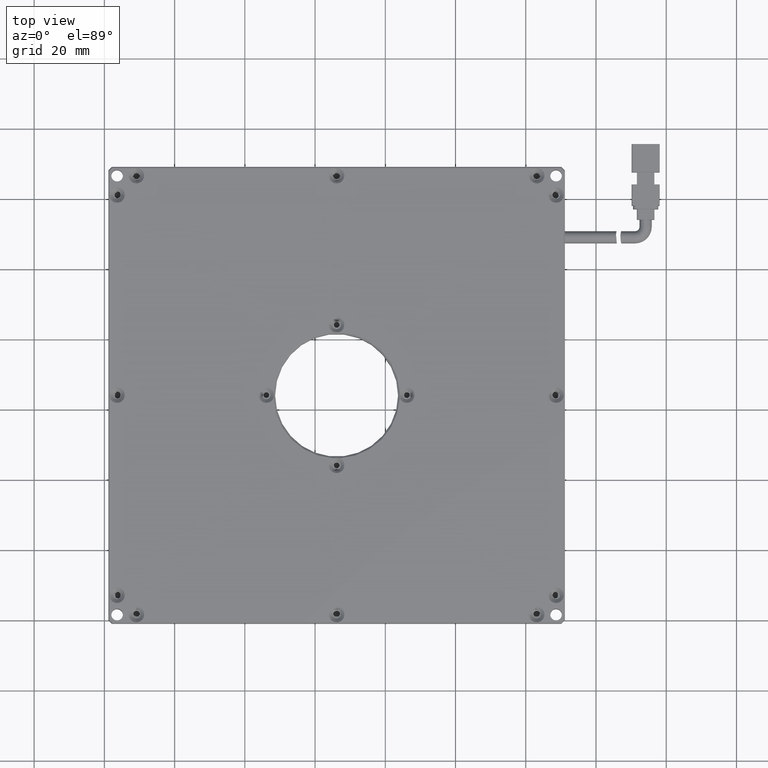
[diagram: clean part render]
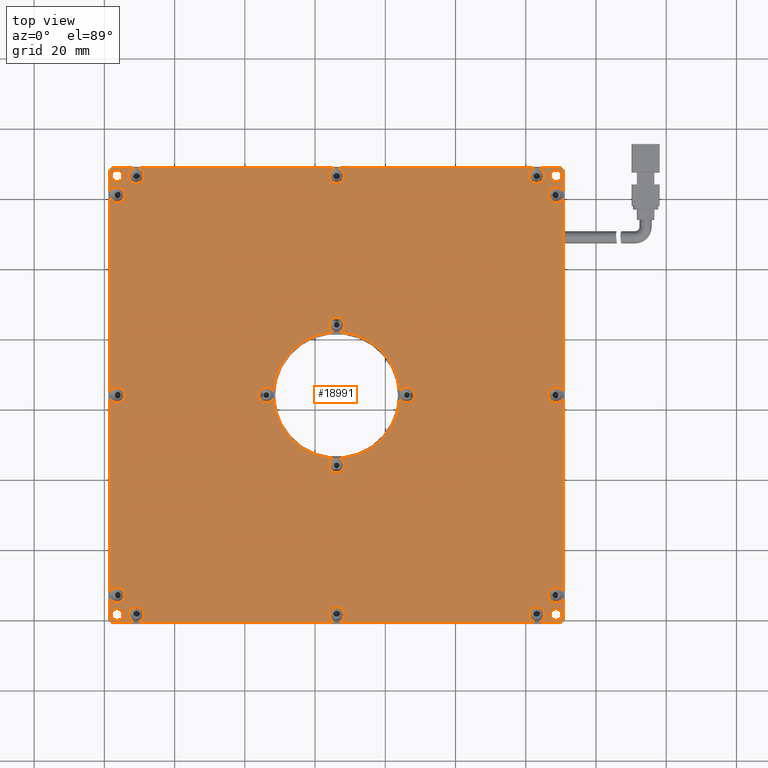
[diagram: same view with one face highlighted and labeled with its STEP entity id]
A machine part, top view. The second image highlights one B-rep face of the part: STEP entity #18991.
In plain terms, the highlighted planar face has unit normal (0, 0, -1).
Its self-contained STEP definition (entity closure, byte-faithful):
#48 = CARTESIAN_POINT ( 'NONE',  ( -30.87092592592590600, -38.44055555555553400, 6.000000000021374000 ) ) ;
#105 = EDGE_CURVE ( 'NONE', #8917, #11509, #1846, .T. ) ;
#231 = VERTEX_POINT ( 'NONE', #1223 ) ;
#282 = CARTESIAN_POINT ( 'NONE',  ( 90.00481000536216000, -40.64055555555554400, 5.999999999999999100 ) ) ;
#286 = AXIS2_PLACEMENT_3D ( 'NONE', #14845, #7040, #10150 ) ;
#291 = ORIENTED_EDGE ( 'NONE', *, *, #18094, .F. ) ;
#308 = ORIENTED_EDGE ( 'NONE', *, *, #1393, .T. ) ;
#333 = DIRECTION ( 'NONE',  ( 0.0000000000000000000, 4.928191693171372200E-017, 1.000000000000000000 ) ) ;
#376 = DIRECTION ( 'NONE',  ( 1.000000000000000000, 0.0000000000000000000, 0.0000000000000000000 ) ) ;
#443 = CARTESIAN_POINT ( 'NONE',  ( 23.92907407411705400, 44.05944444444446600, 5.999999999964530600 ) ) ;
#538 = VERTEX_POINT ( 'NONE', #8771 ) ;
#542 = DIRECTION ( 'NONE',  ( 1.000000000000000000, 0.0000000000000000000, 0.0000000000000000000 ) ) ;
#710 = ORIENTED_EDGE ( 'NONE', *, *, #3239, .T. ) ;
#753 = VERTEX_POINT ( 'NONE', #19229 ) ;
#818 = DIRECTION ( 'NONE',  ( 1.000000000000000000, 0.0000000000000000000, 0.0000000000000000000 ) ) ;
#824 = EDGE_CURVE ( 'NONE', #5753, #16916, #16545, .T. ) ;
#826 = CARTESIAN_POINT ( 'NONE',  ( -37.74666185721396500, -40.64055555555553700, 6.000000000000000000 ) ) ;
#895 = CIRCLE ( 'NONE', #18716, 18.00000000000000400 ) ;
#902 = AXIS2_PLACEMENT_3D ( 'NONE', #3874, #8657, #2284 ) ;
#931 = AXIS2_PLACEMENT_3D ( 'NONE', #18036, #10268, #818 ) ;
#943 = VERTEX_POINT ( 'NONE', #3540 ) ;
#957 = DIRECTION ( 'NONE',  ( 1.000000000000000000, 0.0000000000000000000, 0.0000000000000000000 ) ) ;
#966 = EDGE_LOOP ( 'NONE', ( #308, #20166 ) ) ;
#978 = ORIENTED_EDGE ( 'NONE', *, *, #10650, .F. ) ;
#1002 = VERTEX_POINT ( 'NONE', #15107 ) ;
#1095 = CARTESIAN_POINT ( 'NONE',  ( 88.62907407407409700, 86.55944444444446600, 6.000000000000000000 ) ) ;
#1159 = DIRECTION ( 'NONE',  ( 1.000000000000000000, 0.0000000000000000000, 0.0000000000000000000 ) ) ;
#1197 = CARTESIAN_POINT ( 'NONE',  ( 85.32907407410438300, 86.55944444444446600, 6.000000000078217400 ) ) ;
#1223 = CARTESIAN_POINT ( 'NONE',  ( 86.42907407411702500, 81.05944444444446600, 6.000000000021374000 ) ) ;
#1251 = DIRECTION ( 'NONE',  ( 0.0000000000000000000, -0.0000000000000000000, 1.000000000000000000 ) ) ;
#1284 = AXIS2_PLACEMENT_3D ( 'NONE', #18309, #8851, #19825 ) ;
#1393 = EDGE_CURVE ( 'NONE', #10666, #20130, #7433, .T. ) ;
#1401 = AXIS2_PLACEMENT_3D ( 'NONE', #16763, #5881, #1159 ) ;
#1455 = DIRECTION ( 'NONE',  ( 0.0000000000000000000, 0.0000000000000000000, -1.000000000000000000 ) ) ;
#1465 = ORIENTED_EDGE ( 'NONE', *, *, #18572, .F. ) ;
#1473 = VERTEX_POINT ( 'NONE', #10431 ) ;
#1495 = CIRCLE ( 'NONE', #20272, 2.199999999957069600 ) ;
#1563 = CARTESIAN_POINT ( 'NONE',  ( 26.99830304270746200, 6.080444444440537700, 5.999999999985513800 ) ) ;
#1577 = CIRCLE ( 'NONE', #286, 2.199999999940693800 ) ;
#1597 = DIRECTION ( 'NONE',  ( 0.0000000000000000000, -1.000000000000000000, 0.0000000000000000000 ) ) ;
#1652 = AXIS2_PLACEMENT_3D ( 'NONE', #16388, #9031, #2453 ) ;
#1659 = DIRECTION ( 'NONE',  ( 1.000000000000000000, 0.0000000000000000000, 0.0000000000000000000 ) ) ;
#1664 = DIRECTION ( 'NONE',  ( 1.000000000000000000, 0.0000000000000000000, 0.0000000000000000000 ) ) ;
#1829 = ORIENTED_EDGE ( 'NONE', *, *, #4448, .F. ) ;
#1836 = AXIS2_PLACEMENT_3D ( 'NONE', #9772, #333, #12687 ) ;
#1846 = CIRCLE ( 'NONE', #902, 2.200000000013913000 ) ;
#1923 = CIRCLE ( 'NONE', #15879, 2.199999999957069600 ) ;
#1949 = ORIENTED_EDGE ( 'NONE', *, *, #4557, .F. ) ;
#1974 = VERTEX_POINT ( 'NONE', #16333 ) ;
#2002 = LINE ( 'NONE', #4285, #9917 ) ;
#2015 = VECTOR ( 'NONE', #10840, 1000.000000000000100 ) ;
#2043 = ORIENTED_EDGE ( 'NONE', *, *, #19220, .F. ) ;
#2063 = CARTESIAN_POINT ( 'NONE',  ( 26.12907407407409700, -36.24055555559845500, 5.999999999964530600 ) ) ;
#2078 = DIRECTION ( 'NONE',  ( 0.0000000000000000000, -1.000000000000000000, 0.0000000000000000000 ) ) ;
#2150 = EDGE_CURVE ( 'NONE', #8392, #15557, #6298, .T. ) ;
#2195 = ORIENTED_EDGE ( 'NONE', *, *, #5342, .F. ) ;
#2203 = CARTESIAN_POINT ( 'NONE',  ( 26.12907407407409700, -38.44055555555552700, 5.999999999964530600 ) ) ;
#2218 = ORIENTED_EDGE ( 'NONE', *, *, #7601, .F. ) ;
#2250 = VERTEX_POINT ( 'NONE', #443 ) ;
#2274 = CIRCLE ( 'NONE', #1401, 2.199999999957083400 ) ;
#2284 = DIRECTION ( 'NONE',  ( 1.000000000000000000, 0.0000000000000000000, 0.0000000000000000000 ) ) ;
#2341 = CARTESIAN_POINT ( 'NONE',  ( 8.150074074061535600, 23.19021547579281500, 6.000000000020566700 ) ) ;
#2396 = AXIS2_PLACEMENT_3D ( 'NONE', #15163, #5804, #19821 ) ;
#2401 = VERTEX_POINT ( 'NONE', #16278 ) ;
#2416 = CARTESIAN_POINT ( 'NONE',  ( 90.82907407403116900, 81.05944444444446600, 6.000000000021374000 ) ) ;
#2441 = VERTEX_POINT ( 'NONE', #2341 ) ;
#2453 = DIRECTION ( 'NONE',  ( 1.000000000000000000, 0.0000000000000000000, 0.0000000000000000000 ) ) ;
#2522 = AXIS2_PLACEMENT_3D ( 'NONE', #18326, #9007, #16705 ) ;
#2546 = CARTESIAN_POINT ( 'NONE',  ( 23.92907407411700000, 4.059444444444455500, 5.999999999964530600 ) ) ;
#2571 = EDGE_CURVE ( 'NONE', #943, #19409, #11468, .T. ) ;
#2619 = EDGE_CURVE ( 'NONE', #12536, #11687, #9501, .T. ) ;
#2624 = ORIENTED_EDGE ( 'NONE', *, *, #17527, .F. ) ;
#2705 = DIRECTION ( 'NONE',  ( 0.0000000000000000000, -0.0000000000000000000, 1.000000000000000000 ) ) ;
#2797 = ORIENTED_EDGE ( 'NONE', *, *, #14536, .T. ) ;
#2830 = FACE_BOUND ( 'NONE', #966, .T. ) ;
#2836 = CARTESIAN_POINT ( 'NONE',  ( -30.87092592592590600, -40.64055555549623500, 6.000000000021374000 ) ) ;
#2991 = ORIENTED_EDGE ( 'NONE', *, *, #10906, .F. ) ;
#3098 = LINE ( 'NONE', #5663, #5592 ) ;
#3103 = DIRECTION ( 'NONE',  ( 1.000000000000000000, 0.0000000000000000000, 0.0000000000000000000 ) ) ;
#3189 = AXIS2_PLACEMENT_3D ( 'NONE', #8465, #5081, #8389 ) ;
#3212 = CARTESIAN_POINT ( 'NONE',  ( -38.57092592592590600, 87.93518037573255700, 6.000000000000000000 ) ) ;
#3239 = EDGE_CURVE ( 'NONE', #8466, #7708, #3746, .T. ) ;
#3258 = CARTESIAN_POINT ( 'NONE',  ( -30.87092592592590600, -38.44055555555553400, 6.000000000021374000 ) ) ;
#3355 = DIRECTION ( 'NONE',  ( -1.000000000000000000, 0.0000000000000000000, -0.0000000000000000000 ) ) ;
#3386 = CIRCLE ( 'NONE', #17836, 1.649999999999991700 ) ;
#3430 = ORIENTED_EDGE ( 'NONE', *, *, #12806, .T. ) ;
#3517 = CARTESIAN_POINT ( 'NONE',  ( -38.57092592592590600, 89.05944444444446600, 6.000000000000000000 ) ) ;
#3539 = CIRCLE ( 'NONE', #2522, 2.200000000013913000 ) ;
#3540 = CARTESIAN_POINT ( 'NONE',  ( 90.27907407407407400, 86.55944444444446600, 6.000000000000000000 ) ) ;
#3558 = EDGE_CURVE ( 'NONE', #8923, #3995, #18404, .T. ) ;
#3611 = FACE_BOUND ( 'NONE', #14980, .T. ) ;
#3713 = DIRECTION ( 'NONE',  ( 1.000000000000000000, 0.0000000000000000000, 0.0000000000000000000 ) ) ;
#3746 = LINE ( 'NONE', #20205, #2015 ) ;
#3775 = DIRECTION ( 'NONE',  ( 0.0000000000000000000, -0.0000000000000000000, 1.000000000000000000 ) ) ;
#3778 = ORIENTED_EDGE ( 'NONE', *, *, #17821, .F. ) ;
#3816 = EDGE_LOOP ( 'NONE', ( #12080, #15482 ) ) ;
#3859 = AXIS2_PLACEMENT_3D ( 'NONE', #19251, #13212, #6645 ) ;
#3861 = CIRCLE ( 'NONE', #13829, 2.200000000013913000 ) ;
#3874 = CARTESIAN_POINT ( 'NONE',  ( -36.37092592592590300, -32.94055555555552700, 5.999999999964530600 ) ) ;
#3899 = AXIS2_PLACEMENT_3D ( 'NONE', #2203, #5389, #8584 ) ;
#3940 = ORIENTED_EDGE ( 'NONE', *, *, #8016, .T. ) ;
#3962 = EDGE_LOOP ( 'NONE', ( #2195, #17745, #2624, #10127, #19410, #5409, #291, #3778, #1465, #2218, #12118, #1829, #18242, #16230, #18008 ) ) ;
#3995 = VERTEX_POINT ( 'NONE', #16605 ) ;
#4115 = DIRECTION ( 'NONE',  ( 0.0000000000000000000, -0.0000000000000000000, 1.000000000000000000 ) ) ;
#4124 = VERTEX_POINT ( 'NONE', #15426 ) ;
#4285 = CARTESIAN_POINT ( 'NONE',  ( -38.87092592592590300, -40.64055555555553700, 6.000000000000000000 ) ) ;
#4292 = VERTEX_POINT ( 'NONE', #7764 ) ;
#4308 = DIRECTION ( 'NONE',  ( 1.000000000000000000, 0.0000000000000000000, 0.0000000000000000000 ) ) ;
#4360 = CIRCLE ( 'NONE', #19052, 18.00000000000001400 ) ;
#4377 = AXIS2_PLACEMENT_3D ( 'NONE', #18310, #19762, #957 ) ;
#4400 = VERTEX_POINT ( 'NONE', #282 ) ;
#4435 = DIRECTION ( 'NONE',  ( 0.0000000000000000000, 4.928191693248779800E-017, 1.000000000000000000 ) ) ;
#4448 = EDGE_CURVE ( 'NONE', #5749, #13292, #14912, .T. ) ;
#4482 = DIRECTION ( 'NONE',  ( 0.0000000000000000000, 0.0000000000000000000, -1.000000000000000000 ) ) ;
#4557 = EDGE_CURVE ( 'NONE', #753, #15114, #16145, .T. ) ;
#4586 = CARTESIAN_POINT ( 'NONE',  ( 88.62907407407409700, -32.94055555555552700, 6.000000000021374000 ) ) ;
#4617 = EDGE_CURVE ( 'NONE', #7451, #18143, #11519, .T. ) ;
#4697 = CIRCLE ( 'NONE', #6445, 2.199999999975249300 ) ;
#4706 = EDGE_CURVE ( 'NONE', #2401, #15822, #8384, .T. ) ;
#4751 = CARTESIAN_POINT ( 'NONE',  ( 8.150074074061535600, 24.92867341309596400, 6.000000000020564900 ) ) ;
#4804 = CARTESIAN_POINT ( 'NONE',  ( 86.97907407407410600, 86.55944444444446600, 6.000000000000000000 ) ) ;
#4845 = FACE_BOUND ( 'NONE', #16732, .T. ) ;
#4857 = DIRECTION ( 'NONE',  ( 1.000000000000000000, 0.0000000000000000000, 0.0000000000000000000 ) ) ;
#5000 = CARTESIAN_POINT ( 'NONE',  ( 26.99830304270746200, 42.03844444444838000, 5.999999999985517400 ) ) ;
#5005 = CIRCLE ( 'NONE', #17645, 1.649999999999991700 ) ;
#5040 = LINE ( 'NONE', #5873, #19246 ) ;
#5052 = VERTEX_POINT ( 'NONE', #13396 ) ;
#5079 = DIRECTION ( 'NONE',  ( 0.0000000000000000000, 4.928191693171372200E-017, 1.000000000000000000 ) ) ;
#5081 = DIRECTION ( 'NONE',  ( 0.0000000000000000000, 4.928191693466765400E-017, 1.000000000000000000 ) ) ;
#5107 = CIRCLE ( 'NONE', #13500, 2.199999999957055900 ) ;
#5178 = CARTESIAN_POINT ( 'NONE',  ( 25.25984510544075700, 42.03844444444839500, 5.999999999985519100 ) ) ;
#5179 = VERTEX_POINT ( 'NONE', #5178 ) ;
#5238 = AXIS2_PLACEMENT_3D ( 'NONE', #48, #14163, #1597 ) ;
#5342 = EDGE_CURVE ( 'NONE', #2441, #7451, #895, .T. ) ;
#5356 = DIRECTION ( 'NONE',  ( 1.000000000000000000, 0.0000000000000000000, 0.0000000000000000000 ) ) ;
#5375 = CARTESIAN_POINT ( 'NONE',  ( -34.17092592591198800, -32.94055555555552700, 5.999999999964530600 ) ) ;
#5389 = DIRECTION ( 'NONE',  ( 0.0000000000000000000, 4.928191693466765400E-017, 1.000000000000000000 ) ) ;
#5409 = ORIENTED_EDGE ( 'NONE', *, *, #16997, .F. ) ;
#5419 = CARTESIAN_POINT ( 'NONE',  ( -36.37092592592590300, -32.94055555555552700, 5.999999999964530600 ) ) ;
#5494 = EDGE_CURVE ( 'NONE', #1002, #1473, #14674, .T. ) ;
#5564 = VERTEX_POINT ( 'NONE', #12408 ) ;
#5592 = VECTOR ( 'NONE', #11883, 1000.000000000000000 ) ;
#5639 = VERTEX_POINT ( 'NONE', #3212 ) ;
#5660 = CARTESIAN_POINT ( 'NONE',  ( -36.37092592592590300, 24.05944444444447300, 5.999999999964530600 ) ) ;
#5663 = CARTESIAN_POINT ( 'NONE',  ( -38.87092592592590300, 88.75944444444446900, 6.000000000000000000 ) ) ;
#5749 = VERTEX_POINT ( 'NONE', #1563 ) ;
#5753 = VERTEX_POINT ( 'NONE', #4751 ) ;
#5804 = DIRECTION ( 'NONE',  ( 0.0000000000000000000, 0.0000000000000000000, -1.000000000000000000 ) ) ;
#5858 = EDGE_CURVE ( 'NONE', #5052, #13737, #11479, .T. ) ;
#5870 = DIRECTION ( 'NONE',  ( 1.000000000000000000, 0.0000000000000000000, 0.0000000000000000000 ) ) ;
#5873 = CARTESIAN_POINT ( 'NONE',  ( 90.82907407407410000, 89.05944444444446600, 6.000000000000000000 ) ) ;
#5881 = DIRECTION ( 'NONE',  ( 0.0000000000000000000, -0.0000000000000000000, 1.000000000000000000 ) ) ;
#5887 = CIRCLE ( 'NONE', #3899, 2.199999999957069600 ) ;
#5953 = CARTESIAN_POINT ( 'NONE',  ( -36.37092592592590300, 86.55944444444446600, 6.000000000000000000 ) ) ;
#5967 = EDGE_LOOP ( 'NONE', ( #8183, #15537 ) ) ;
#5987 = DIRECTION ( 'NONE',  ( 1.000000000000000000, 0.0000000000000000000, 0.0000000000000000000 ) ) ;
#6007 = ORIENTED_EDGE ( 'NONE', *, *, #2150, .T. ) ;
#6102 = CARTESIAN_POINT ( 'NONE',  ( 90.00481000536224500, 88.75944444444446900, 5.999999999999995600 ) ) ;
#6117 = CARTESIAN_POINT ( 'NONE',  ( 83.12907407407409700, -38.44055555555553400, 6.000000000078217400 ) ) ;
#6159 = ORIENTED_EDGE ( 'NONE', *, *, #16666, .T. ) ;
#6173 = EDGE_LOOP ( 'NONE', ( #18013, #2043 ) ) ;
#6231 = VERTEX_POINT ( 'NONE', #19386 ) ;
#6298 = CIRCLE ( 'NONE', #10609, 1.649999999999991700 ) ;
#6324 = FACE_BOUND ( 'NONE', #6173, .T. ) ;
#6379 = VERTEX_POINT ( 'NONE', #2836 ) ;
#6445 = AXIS2_PLACEMENT_3D ( 'NONE', #14446, #5079, #2078 ) ;
#6460 = ORIENTED_EDGE ( 'NONE', *, *, #5858, .F. ) ;
#6621 = VERTEX_POINT ( 'NONE', #2416 ) ;
#6645 = DIRECTION ( 'NONE',  ( 1.000000000000000000, 0.0000000000000000000, 0.0000000000000000000 ) ) ;
#6662 = VERTEX_POINT ( 'NONE', #13610 ) ;
#6674 = DIRECTION ( 'NONE',  ( 1.000000000000000000, 0.0000000000000000000, 0.0000000000000000000 ) ) ;
#6690 = EDGE_CURVE ( 'NONE', #18143, #20231, #2274, .T. ) ;
#6744 = VECTOR ( 'NONE', #12543, 1000.000000000000100 ) ;
#6815 = DIRECTION ( 'NONE',  ( 1.000000000000000000, 0.0000000000000000000, 0.0000000000000000000 ) ) ;
#6857 = ORIENTED_EDGE ( 'NONE', *, *, #15324, .F. ) ;
#6875 = AXIS2_PLACEMENT_3D ( 'NONE', #15279, #2705, #8759 ) ;
#6928 = DIRECTION ( 'NONE',  ( 1.000000000000000000, 0.0000000000000000000, 0.0000000000000000000 ) ) ;
#6997 = CARTESIAN_POINT ( 'NONE',  ( 90.82907407407410000, -39.81629148684358900, 6.000000000000000000 ) ) ;
#7017 = EDGE_CURVE ( 'NONE', #13292, #6662, #7663, .T. ) ;
#7040 = DIRECTION ( 'NONE',  ( 0.0000000000000000000, 4.928191693248779800E-017, 1.000000000000000000 ) ) ;
#7047 = FACE_BOUND ( 'NONE', #12393, .T. ) ;
#7077 = CARTESIAN_POINT ( 'NONE',  ( 26.12907407407411100, 44.05944444444446600, 5.999999999964530600 ) ) ;
#7171 = ORIENTED_EDGE ( 'NONE', *, *, #10614, .F. ) ;
#7250 = DIRECTION ( 'NONE',  ( 0.0000000000000000000, 4.928191693171372200E-017, 1.000000000000000000 ) ) ;
#7279 = CARTESIAN_POINT ( 'NONE',  ( 26.12907407407409700, 24.05944444444445900, 5.999999999999998200 ) ) ;
#7297 = FACE_BOUND ( 'NONE', #19995, .T. ) ;
#7316 = EDGE_CURVE ( 'NONE', #12881, #10168, #11113, .T. ) ;
#7359 = AXIS2_PLACEMENT_3D ( 'NONE', #15669, #17263, #1664 ) ;
#7371 = DIRECTION ( 'NONE',  ( 0.0000000000000000000, 0.0000000000000000000, -1.000000000000000000 ) ) ;
#7372 = EDGE_CURVE ( 'NONE', #5639, #6231, #13258, .T. ) ;
#7415 = CARTESIAN_POINT ( 'NONE',  ( 90.82907407407410000, 87.93518037573258500, 6.000000000000000000 ) ) ;
#7416 = CARTESIAN_POINT ( 'NONE',  ( 26.12907407407409700, 84.35944444448739400, 5.999999999964530600 ) ) ;
#7433 = CIRCLE ( 'NONE', #931, 1.649999999999984800 ) ;
#7451 = VERTEX_POINT ( 'NONE', #16444 ) ;
#7526 = FACE_BOUND ( 'NONE', #12657, .T. ) ;
#7583 = DIRECTION ( 'NONE',  ( 0.0000000000000000000, 0.0000000000000000000, -1.000000000000000000 ) ) ;
#7601 = EDGE_CURVE ( 'NONE', #6662, #9382, #10104, .T. ) ;
#7663 = CIRCLE ( 'NONE', #11031, 2.200000000052562600 ) ;
#7669 = ORIENTED_EDGE ( 'NONE', *, *, #19662, .F. ) ;
#7708 = VERTEX_POINT ( 'NONE', #6102 ) ;
#7719 = LINE ( 'NONE', #20090, #6744 ) ;
#7725 = DIRECTION ( 'NONE',  ( 1.000000000000000000, 0.0000000000000000000, 0.0000000000000000000 ) ) ;
#7729 = DIRECTION ( 'NONE',  ( 1.000000000000000000, 0.0000000000000000000, 0.0000000000000000000 ) ) ;
#7764 = CARTESIAN_POINT ( 'NONE',  ( -38.02092592592589400, -38.44055555555552700, 6.000000000000000000 ) ) ;
#7809 = AXIS2_PLACEMENT_3D ( 'NONE', #7279, #8894, #19673 ) ;
#7817 = CARTESIAN_POINT ( 'NONE',  ( 26.12907407407409700, -38.44055555555552700, 5.999999999964530600 ) ) ;
#7861 = EDGE_CURVE ( 'NONE', #4124, #2441, #13738, .T. ) ;
#8015 = CARTESIAN_POINT ( 'NONE',  ( 90.82907407403116900, 24.05944444444447300, 6.000000000021374000 ) ) ;
#8016 = EDGE_CURVE ( 'NONE', #4400, #1974, #15195, .T. ) ;
#8040 = FACE_BOUND ( 'NONE', #14955, .T. ) ;
#8086 = DIRECTION ( 'NONE',  ( 0.0000000000000000000, 4.928191693248764300E-017, 1.000000000000000000 ) ) ;
#8183 = ORIENTED_EDGE ( 'NONE', *, *, #20212, .F. ) ;
#8236 = CARTESIAN_POINT ( 'NONE',  ( -30.87092592592590600, -36.24055555561483300, 6.000000000021374000 ) ) ;
#8347 = DIRECTION ( 'NONE',  ( 1.000000000000000000, 0.0000000000000000000, 0.0000000000000000000 ) ) ;
#8384 = CIRCLE ( 'NONE', #11513, 2.199999999957069600 ) ;
#8389 = DIRECTION ( 'NONE',  ( 0.0000000000000000000, -1.000000000000000000, 0.0000000000000000000 ) ) ;
#8392 = VERTEX_POINT ( 'NONE', #10946 ) ;
#8410 = ORIENTED_EDGE ( 'NONE', *, *, #17733, .F. ) ;
#8465 = CARTESIAN_POINT ( 'NONE',  ( 26.12907407407409700, 86.55944444444446600, 5.999999999964530600 ) ) ;
#8466 = VERTEX_POINT ( 'NONE', #7415 ) ;
#8549 = CARTESIAN_POINT ( 'NONE',  ( 88.62907407407409700, 81.05944444444446600, 6.000000000021374000 ) ) ;
#8584 = DIRECTION ( 'NONE',  ( 0.0000000000000000000, -1.000000000000000000, 0.0000000000000000000 ) ) ;
#8657 = DIRECTION ( 'NONE',  ( 0.0000000000000000000, -0.0000000000000000000, 1.000000000000000000 ) ) ;
#8704 = CARTESIAN_POINT ( 'NONE',  ( 26.12907407407409700, 24.05944444444445900, 6.000000000000001800 ) ) ;
#8746 = ORIENTED_EDGE ( 'NONE', *, *, #7372, .T. ) ;
#8759 = DIRECTION ( 'NONE',  ( 1.000000000000000000, 0.0000000000000000000, 0.0000000000000000000 ) ) ;
#8771 = CARTESIAN_POINT ( 'NONE',  ( -38.57092592593981800, 81.05944444444446600, 5.999999999964530600 ) ) ;
#8848 = DIRECTION ( 'NONE',  ( 0.7071067811865441300, -0.7071067811865510100, -0.0000000000000000000 ) ) ;
#8851 = DIRECTION ( 'NONE',  ( 0.0000000000000000000, -0.0000000000000000000, 1.000000000000000000 ) ) ;
#8894 = DIRECTION ( 'NONE',  ( 0.0000000000000000000, 0.0000000000000000000, 1.000000000000000000 ) ) ;
#8917 = VERTEX_POINT ( 'NONE', #16906 ) ;
#8923 = VERTEX_POINT ( 'NONE', #10443 ) ;
#8929 = CIRCLE ( 'NONE', #13093, 2.200000000013913000 ) ;
#8940 = ORIENTED_EDGE ( 'NONE', *, *, #13661, .T. ) ;
#8987 = DIRECTION ( 'NONE',  ( 0.0000000000000000000, 0.0000000000000000000, -1.000000000000000000 ) ) ;
#8992 = DIRECTION ( 'NONE',  ( 1.000000000000000000, -0.0000000000000000000, 0.0000000000000000000 ) ) ;
#9007 = DIRECTION ( 'NONE',  ( 0.0000000000000000000, -0.0000000000000000000, 1.000000000000000000 ) ) ;
#9010 = DIRECTION ( 'NONE',  ( 0.0000000000000000000, -1.000000000000000000, 0.0000000000000000000 ) ) ;
#9031 = DIRECTION ( 'NONE',  ( 0.0000000000000000000, -0.0000000000000000000, 1.000000000000000000 ) ) ;
#9098 = AXIS2_PLACEMENT_3D ( 'NONE', #9166, #16725, #10720 ) ;
#9166 = CARTESIAN_POINT ( 'NONE',  ( 46.12907407407409700, 24.05944444444465400, 6.000000000021374000 ) ) ;
#9182 = CIRCLE ( 'NONE', #12026, 2.199999999957069600 ) ;
#9192 = DIRECTION ( 'NONE',  ( 0.0000000000000000000, 1.000000000000000000, 0.0000000000000000000 ) ) ;
#9208 = VERTEX_POINT ( 'NONE', #10774 ) ;
#9292 = DIRECTION ( 'NONE',  ( 0.0000000000000000000, 4.928191693466765400E-017, 1.000000000000000000 ) ) ;
#9324 = LINE ( 'NONE', #826, #12743 ) ;
#9358 = CARTESIAN_POINT ( 'NONE',  ( -36.37092592592590300, -38.44055555555552700, 6.000000000000000000 ) ) ;
#9382 = VERTEX_POINT ( 'NONE', #17801 ) ;
#9386 = EDGE_LOOP ( 'NONE', ( #978, #20101 ) ) ;
#9474 = DIRECTION ( 'NONE',  ( 0.0000000000000000000, -0.0000000000000000000, 1.000000000000000000 ) ) ;
#9493 = DIRECTION ( 'NONE',  ( 0.0000000000000000000, -1.000000000000000000, 0.0000000000000000000 ) ) ;
#9501 = CIRCLE ( 'NONE', #15595, 2.199999999957069600 ) ;
#9529 = CIRCLE ( 'NONE', #12894, 2.200000000030288800 ) ;
#9555 = CARTESIAN_POINT ( 'NONE',  ( -34.17092592591198800, 81.05944444444446600, 5.999999999964530600 ) ) ;
#9659 = ORIENTED_EDGE ( 'NONE', *, *, #14447, .F. ) ;
#9727 = PLANE ( 'NONE',  #13298 ) ;
#9753 = CARTESIAN_POINT ( 'NONE',  ( 28.32907407403116600, 44.05944444444446600, 5.999999999964530600 ) ) ;
#9772 = CARTESIAN_POINT ( 'NONE',  ( 6.129074074074106100, 24.05944444444440600, 6.000000000021374000 ) ) ;
#9917 = VECTOR ( 'NONE', #8992, 1000.000000000000000 ) ;
#9944 = CARTESIAN_POINT ( 'NONE',  ( 86.97907407407410600, -38.44055555555552700, 6.000000000000000000 ) ) ;
#9975 = CIRCLE ( 'NONE', #4377, 2.200000000013913000 ) ;
#9981 = DIRECTION ( 'NONE',  ( 0.0000000000000000000, -0.0000000000000000000, 1.000000000000000000 ) ) ;
#10034 = CIRCLE ( 'NONE', #13912, 2.199999999957069600 ) ;
#10099 = CARTESIAN_POINT ( 'NONE',  ( -34.72092592592591100, 86.55944444444446600, 6.000000000000000000 ) ) ;
#10104 = CIRCLE ( 'NONE', #9098, 2.200000000052562600 ) ;
#10108 = AXIS2_PLACEMENT_3D ( 'NONE', #1095, #7371, #10282 ) ;
#10127 = ORIENTED_EDGE ( 'NONE', *, *, #824, .F. ) ;
#10150 = DIRECTION ( 'NONE',  ( 0.0000000000000000000, -1.000000000000000000, 0.0000000000000000000 ) ) ;
#10166 = ORIENTED_EDGE ( 'NONE', *, *, #2571, .T. ) ;
#10168 = VERTEX_POINT ( 'NONE', #1197 ) ;
#10210 = DIRECTION ( 'NONE',  ( 0.0000000000000000000, -0.0000000000000000000, 1.000000000000000000 ) ) ;
#10268 = DIRECTION ( 'NONE',  ( 0.0000000000000000000, 0.0000000000000000000, -1.000000000000000000 ) ) ;
#10282 = DIRECTION ( 'NONE',  ( 1.000000000000000000, 0.0000000000000000000, 0.0000000000000000000 ) ) ;
#10341 = CARTESIAN_POINT ( 'NONE',  ( 28.32907407403116600, 4.059444444444455500, 5.999999999964530600 ) ) ;
#10397 = CARTESIAN_POINT ( 'NONE',  ( 44.10807407406387900, 23.19021547569619900, 6.000000000002481600 ) ) ;
#10419 = DIRECTION ( 'NONE',  ( 0.0000000000000000000, -0.0000000000000000000, 1.000000000000000000 ) ) ;
#10431 = CARTESIAN_POINT ( 'NONE',  ( 85.32907407410438300, -38.44055555555553400, 6.000000000078217400 ) ) ;
#10443 = CARTESIAN_POINT ( 'NONE',  ( -38.57092592593981800, 24.05944444444447300, 5.999999999964530600 ) ) ;
#10481 = CARTESIAN_POINT ( 'NONE',  ( 88.62907407407409700, 24.05944444444447300, 6.000000000021374000 ) ) ;
#10539 = CARTESIAN_POINT ( 'NONE',  ( -36.37092592592590300, -38.44055555555552700, 6.000000000000000000 ) ) ;
#10581 = ORIENTED_EDGE ( 'NONE', *, *, #11117, .T. ) ;
#10609 = AXIS2_PLACEMENT_3D ( 'NONE', #18608, #1455, #4857 ) ;
#10614 = EDGE_CURVE ( 'NONE', #231, #6621, #9182, .T. ) ;
#10650 = EDGE_CURVE ( 'NONE', #11509, #8917, #8929, .T. ) ;
#10666 = VERTEX_POINT ( 'NONE', #13218 ) ;
#10720 = DIRECTION ( 'NONE',  ( 1.000000000000000000, 0.0000000000000000000, 0.0000000000000000000 ) ) ;
#10774 = CARTESIAN_POINT ( 'NONE',  ( -37.74666185721395800, -40.64055555555553700, 6.000000000000000000 ) ) ;
#10840 = DIRECTION ( 'NONE',  ( -0.7071067811865474600, 0.7071067811865474600, -0.0000000000000000000 ) ) ;
#10852 = DIRECTION ( 'NONE',  ( 0.0000000000000000000, -1.000000000000000000, 0.0000000000000000000 ) ) ;
#10906 = EDGE_CURVE ( 'NONE', #16250, #6379, #18461, .T. ) ;
#10946 = CARTESIAN_POINT ( 'NONE',  ( -38.02092592592589400, 86.55944444444446600, 6.000000000000000000 ) ) ;
#11031 = AXIS2_PLACEMENT_3D ( 'NONE', #12343, #13776, #5987 ) ;
#11085 = EDGE_CURVE ( 'NONE', #20231, #5749, #13553, .T. ) ;
#11099 = CARTESIAN_POINT ( 'NONE',  ( -36.37092592592590300, 24.05944444444447300, 5.999999999964530600 ) ) ;
#11113 = CIRCLE ( 'NONE', #19555, 2.200000000030288800 ) ;
#11117 = EDGE_CURVE ( 'NONE', #9208, #4400, #2002, .T. ) ;
#11121 = DIRECTION ( 'NONE',  ( 0.0000000000000000000, 4.928191693466765400E-017, 1.000000000000000000 ) ) ;
#11180 = ORIENTED_EDGE ( 'NONE', *, *, #14019, .F. ) ;
#11237 = FACE_OUTER_BOUND ( 'NONE', #17879, .T. ) ;
#11255 = CARTESIAN_POINT ( 'NONE',  ( 86.42907407411702500, -32.94055555555552700, 6.000000000021374000 ) ) ;
#11342 = CARTESIAN_POINT ( 'NONE',  ( -38.87092592592590300, 89.05944444444446600, 6.000000000000000000 ) ) ;
#11417 = EDGE_CURVE ( 'NONE', #5179, #5753, #15954, .T. ) ;
#11427 = DIRECTION ( 'NONE',  ( 0.0000000000000000000, -0.0000000000000000000, 1.000000000000000000 ) ) ;
#11468 = CIRCLE ( 'NONE', #10108, 1.649999999999984800 ) ;
#11479 = CIRCLE ( 'NONE', #16107, 2.199999999940693800 ) ;
#11482 = FACE_BOUND ( 'NONE', #3962, .T. ) ;
#11486 = CARTESIAN_POINT ( 'NONE',  ( 26.12907407407409700, 24.05944444444445900, 5.999999999999998200 ) ) ;
#11509 = VERTEX_POINT ( 'NONE', #5375 ) ;
#11513 = AXIS2_PLACEMENT_3D ( 'NONE', #4586, #17105, #7729 ) ;
#11519 = CIRCLE ( 'NONE', #3859, 2.199999999957083400 ) ;
#11651 = EDGE_CURVE ( 'NONE', #6621, #231, #1923, .T. ) ;
#11687 = VERTEX_POINT ( 'NONE', #20006 ) ;
#11698 = FACE_BOUND ( 'NONE', #5967, .T. ) ;
#11757 = EDGE_LOOP ( 'NONE', ( #18700, #6159 ) ) ;
#11883 = DIRECTION ( 'NONE',  ( -1.000000000000000000, 0.0000000000000000000, -0.0000000000000000000 ) ) ;
#12024 = ORIENTED_EDGE ( 'NONE', *, *, #20293, .T. ) ;
#12026 = AXIS2_PLACEMENT_3D ( 'NONE', #8549, #19456, #5356 ) ;
#12080 = ORIENTED_EDGE ( 'NONE', *, *, #19336, .F. ) ;
#12118 = ORIENTED_EDGE ( 'NONE', *, *, #7017, .F. ) ;
#12127 = ORIENTED_EDGE ( 'NONE', *, *, #7316, .F. ) ;
#12188 = CARTESIAN_POINT ( 'NONE',  ( 88.62907407407409700, 81.05944444444446600, 6.000000000021374000 ) ) ;
#12203 = CIRCLE ( 'NONE', #20304, 1.649999999999984800 ) ;
#12343 = CARTESIAN_POINT ( 'NONE',  ( 46.12907407407409700, 24.05944444444465400, 6.000000000021374000 ) ) ;
#12393 = EDGE_LOOP ( 'NONE', ( #10166, #12024 ) ) ;
#12408 = CARTESIAN_POINT ( 'NONE',  ( 26.12907407407409700, -40.64055555551259900, 5.999999999964530600 ) ) ;
#12409 = EDGE_CURVE ( 'NONE', #11687, #12536, #10034, .T. ) ;
#12475 = CIRCLE ( 'NONE', #1284, 2.199999999957055900 ) ;
#12479 = DIRECTION ( 'NONE',  ( 1.000000000000000000, 0.0000000000000000000, 0.0000000000000000000 ) ) ;
#12486 = VERTEX_POINT ( 'NONE', #9753 ) ;
#12536 = VERTEX_POINT ( 'NONE', #8015 ) ;
#12543 = DIRECTION ( 'NONE',  ( -0.7071067811865483500, -0.7071067811865465700, -0.0000000000000000000 ) ) ;
#12575 = CIRCLE ( 'NONE', #20121, 2.200000000030288800 ) ;
#12607 = AXIS2_PLACEMENT_3D ( 'NONE', #3258, #8086, #14371 ) ;
#12657 = EDGE_LOOP ( 'NONE', ( #9659, #7669 ) ) ;
#12687 = DIRECTION ( 'NONE',  ( 0.0000000000000000000, -1.000000000000000000, 0.0000000000000000000 ) ) ;
#12693 = FACE_BOUND ( 'NONE', #3816, .T. ) ;
#12717 = CARTESIAN_POINT ( 'NONE',  ( 80.92907407404379700, 86.55944444444446600, 6.000000000078217400 ) ) ;
#12743 = VECTOR ( 'NONE', #8848, 999.9999999999998900 ) ;
#12806 = EDGE_CURVE ( 'NONE', #7708, #14261, #3098, .T. ) ;
#12874 = CIRCLE ( 'NONE', #6875, 2.199999999957069600 ) ;
#12881 = VERTEX_POINT ( 'NONE', #12717 ) ;
#12894 = AXIS2_PLACEMENT_3D ( 'NONE', #13627, #1251, #4308 ) ;
#13064 = EDGE_LOOP ( 'NONE', ( #8410, #2991 ) ) ;
#13073 = ORIENTED_EDGE ( 'NONE', *, *, #12409, .F. ) ;
#13093 = AXIS2_PLACEMENT_3D ( 'NONE', #5419, #13158, #6928 ) ;
#13158 = DIRECTION ( 'NONE',  ( 0.0000000000000000000, -0.0000000000000000000, 1.000000000000000000 ) ) ;
#13168 = FACE_BOUND ( 'NONE', #14487, .T. ) ;
#13212 = DIRECTION ( 'NONE',  ( 0.0000000000000000000, -0.0000000000000000000, 1.000000000000000000 ) ) ;
#13218 = CARTESIAN_POINT ( 'NONE',  ( 90.27907407407407400, -38.44055555555552700, 6.000000000000000000 ) ) ;
#13258 = LINE ( 'NONE', #3517, #14730 ) ;
#13292 = VERTEX_POINT ( 'NONE', #10397 ) ;
#13298 = AXIS2_PLACEMENT_3D ( 'NONE', #11342, #17567, #3355 ) ;
#13323 = AXIS2_PLACEMENT_3D ( 'NONE', #11099, #9474, #1659 ) ;
#13356 = ORIENTED_EDGE ( 'NONE', *, *, #20103, .F. ) ;
#13372 = EDGE_CURVE ( 'NONE', #14564, #4292, #13621, .T. ) ;
#13396 = CARTESIAN_POINT ( 'NONE',  ( -30.87092592592590600, 88.75944444438516700, 6.000000000021374000 ) ) ;
#13500 = AXIS2_PLACEMENT_3D ( 'NONE', #7077, #3775, #542 ) ;
#13553 = CIRCLE ( 'NONE', #1652, 2.199999999957083400 ) ;
#13610 = CARTESIAN_POINT ( 'NONE',  ( 48.32907407412666600, 24.05944444444465400, 6.000000000021374000 ) ) ;
#13621 = CIRCLE ( 'NONE', #15795, 1.649999999999991700 ) ;
#13627 = CARTESIAN_POINT ( 'NONE',  ( 83.12907407407409700, 86.55944444444446600, 6.000000000078217400 ) ) ;
#13661 = EDGE_CURVE ( 'NONE', #14261, #5639, #7719, .T. ) ;
#13737 = VERTEX_POINT ( 'NONE', #15780 ) ;
#13738 = CIRCLE ( 'NONE', #1836, 2.199999999975249300 ) ;
#13776 = DIRECTION ( 'NONE',  ( 0.0000000000000000000, -0.0000000000000000000, 1.000000000000000000 ) ) ;
#13785 = DIRECTION ( 'NONE',  ( 1.000000000000000000, 0.0000000000000000000, 0.0000000000000000000 ) ) ;
#13829 = AXIS2_PLACEMENT_3D ( 'NONE', #5660, #10210, #17921 ) ;
#13912 = AXIS2_PLACEMENT_3D ( 'NONE', #18808, #14235, #3103 ) ;
#13973 = DIRECTION ( 'NONE',  ( 0.0000000000000000000, -0.0000000000000000000, 1.000000000000000000 ) ) ;
#14019 = EDGE_CURVE ( 'NONE', #10168, #12881, #9529, .T. ) ;
#14163 = DIRECTION ( 'NONE',  ( 0.0000000000000000000, 4.928191693248764300E-017, 1.000000000000000000 ) ) ;
#14235 = DIRECTION ( 'NONE',  ( 0.0000000000000000000, -0.0000000000000000000, 1.000000000000000000 ) ) ;
#14261 = VERTEX_POINT ( 'NONE', #17184 ) ;
#14371 = DIRECTION ( 'NONE',  ( 0.0000000000000000000, -1.000000000000000000, 0.0000000000000000000 ) ) ;
#14390 = FACE_BOUND ( 'NONE', #11757, .T. ) ;
#14398 = EDGE_CURVE ( 'NONE', #13737, #5052, #1577, .T. ) ;
#14446 = CARTESIAN_POINT ( 'NONE',  ( 6.129074074074106100, 24.05944444444440600, 6.000000000021374000 ) ) ;
#14447 = EDGE_CURVE ( 'NONE', #15860, #538, #9975, .T. ) ;
#14487 = EDGE_LOOP ( 'NONE', ( #6857, #1949 ) ) ;
#14536 = EDGE_CURVE ( 'NONE', #1974, #8466, #5040, .T. ) ;
#14564 = VERTEX_POINT ( 'NONE', #16883 ) ;
#14638 = DIRECTION ( 'NONE',  ( 0.0000000000000000000, -1.000000000000000000, 0.0000000000000000000 ) ) ;
#14674 = CIRCLE ( 'NONE', #15961, 2.200000000030288800 ) ;
#14706 = EDGE_LOOP ( 'NONE', ( #15415, #6007 ) ) ;
#14730 = VECTOR ( 'NONE', #19277, 1000.000000000000000 ) ;
#14845 = CARTESIAN_POINT ( 'NONE',  ( -30.87092592592590600, 86.55944444444446600, 6.000000000021374000 ) ) ;
#14912 = CIRCLE ( 'NONE', #7809, 18.00000000000000400 ) ;
#14955 = EDGE_LOOP ( 'NONE', ( #19908, #7171 ) ) ;
#14956 = VECTOR ( 'NONE', #17750, 1000.000000000000100 ) ;
#14980 = EDGE_LOOP ( 'NONE', ( #15436, #6460 ) ) ;
#15107 = CARTESIAN_POINT ( 'NONE',  ( 80.92907407404379700, -38.44055555555553400, 6.000000000078217400 ) ) ;
#15114 = VERTEX_POINT ( 'NONE', #7416 ) ;
#15163 = CARTESIAN_POINT ( 'NONE',  ( 88.62907407407409700, 86.55944444444446600, 6.000000000000000000 ) ) ;
#15169 = DIRECTION ( 'NONE',  ( 1.000000000000000000, 0.0000000000000000000, 0.0000000000000000000 ) ) ;
#15195 = LINE ( 'NONE', #6997, #14956 ) ;
#15279 = CARTESIAN_POINT ( 'NONE',  ( 88.62907407407409700, -32.94055555555552700, 6.000000000021374000 ) ) ;
#15289 = DIRECTION ( 'NONE',  ( 1.000000000000000000, 0.0000000000000000000, 0.0000000000000000000 ) ) ;
#15324 = EDGE_CURVE ( 'NONE', #15114, #753, #1495, .T. ) ;
#15415 = ORIENTED_EDGE ( 'NONE', *, *, #19756, .T. ) ;
#15426 = CARTESIAN_POINT ( 'NONE',  ( 6.129074074074106100, 21.85944444446915500, 6.000000000021374000 ) ) ;
#15436 = ORIENTED_EDGE ( 'NONE', *, *, #14398, .F. ) ;
#15482 = ORIENTED_EDGE ( 'NONE', *, *, #16393, .F. ) ;
#15537 = ORIENTED_EDGE ( 'NONE', *, *, #3558, .F. ) ;
#15557 = VERTEX_POINT ( 'NONE', #10099 ) ;
#15595 = AXIS2_PLACEMENT_3D ( 'NONE', #10481, #10419, #15169 ) ;
#15614 = ORIENTED_EDGE ( 'NONE', *, *, #5494, .F. ) ;
#15669 = CARTESIAN_POINT ( 'NONE',  ( 26.12907407407411100, 44.05944444444446600, 5.999999999964530600 ) ) ;
#15768 = VERTEX_POINT ( 'NONE', #5000 ) ;
#15780 = CARTESIAN_POINT ( 'NONE',  ( -30.87092592592590600, 84.35944444450377900, 6.000000000021374000 ) ) ;
#15795 = AXIS2_PLACEMENT_3D ( 'NONE', #9358, #18707, #12479 ) ;
#15822 = VERTEX_POINT ( 'NONE', #11255 ) ;
#15860 = VERTEX_POINT ( 'NONE', #9555 ) ;
#15869 = FACE_BOUND ( 'NONE', #9386, .T. ) ;
#15879 = AXIS2_PLACEMENT_3D ( 'NONE', #12188, #4115, #15289 ) ;
#15954 = CIRCLE ( 'NONE', #18751, 18.00000000000000400 ) ;
#15961 = AXIS2_PLACEMENT_3D ( 'NONE', #6117, #13973, #17215 ) ;
#15987 = CARTESIAN_POINT ( 'NONE',  ( 83.12907407407409700, 86.55944444444446600, 6.000000000078217400 ) ) ;
#16107 = AXIS2_PLACEMENT_3D ( 'NONE', #18329, #4435, #9010 ) ;
#16131 = DIRECTION ( 'NONE',  ( 0.0000000000000000000, -0.0000000000000000000, 1.000000000000000000 ) ) ;
#16145 = CIRCLE ( 'NONE', #3189, 2.199999999957069600 ) ;
#16175 = DIRECTION ( 'NONE',  ( 0.0000000000000000000, -0.0000000000000000000, 1.000000000000000000 ) ) ;
#16230 = ORIENTED_EDGE ( 'NONE', *, *, #6690, .F. ) ;
#16250 = VERTEX_POINT ( 'NONE', #8236 ) ;
#16278 = CARTESIAN_POINT ( 'NONE',  ( 90.82907407403116900, -32.94055555555552700, 6.000000000021374000 ) ) ;
#16333 = CARTESIAN_POINT ( 'NONE',  ( 90.82907407407410000, -39.81629148684358200, 6.000000000000001800 ) ) ;
#16388 = CARTESIAN_POINT ( 'NONE',  ( 26.12907407407408300, 4.059444444444455500, 5.999999999964530600 ) ) ;
#16393 = EDGE_CURVE ( 'NONE', #20146, #5564, #5887, .T. ) ;
#16418 = CIRCLE ( 'NONE', #7359, 2.199999999957055900 ) ;
#16424 = EDGE_CURVE ( 'NONE', #6231, #9208, #9324, .T. ) ;
#16444 = CARTESIAN_POINT ( 'NONE',  ( 25.25984510544070000, 6.080444444440537700, 5.999999999985513800 ) ) ;
#16545 = CIRCLE ( 'NONE', #16964, 2.199999999975249300 ) ;
#16605 = CARTESIAN_POINT ( 'NONE',  ( -34.17092592591198800, 24.05944444444447300, 5.999999999964530600 ) ) ;
#16636 = EDGE_CURVE ( 'NONE', #20130, #10666, #12203, .T. ) ;
#16666 = EDGE_CURVE ( 'NONE', #4292, #14564, #3386, .T. ) ;
#16705 = DIRECTION ( 'NONE',  ( 1.000000000000000000, 0.0000000000000000000, 0.0000000000000000000 ) ) ;
#16725 = DIRECTION ( 'NONE',  ( 0.0000000000000000000, -0.0000000000000000000, 1.000000000000000000 ) ) ;
#16732 = EDGE_LOOP ( 'NONE', ( #13356, #15614 ) ) ;
#16763 = CARTESIAN_POINT ( 'NONE',  ( 26.12907407407408300, 4.059444444444455500, 5.999999999964530600 ) ) ;
#16842 = FACE_BOUND ( 'NONE', #17783, .T. ) ;
#16883 = CARTESIAN_POINT ( 'NONE',  ( -34.72092592592591100, -38.44055555555552700, 6.000000000000000000 ) ) ;
#16906 = CARTESIAN_POINT ( 'NONE',  ( -38.57092592593981800, -32.94055555555552700, 5.999999999964530600 ) ) ;
#16916 = VERTEX_POINT ( 'NONE', #18997 ) ;
#16964 = AXIS2_PLACEMENT_3D ( 'NONE', #17653, #7250, #14638 ) ;
#16997 = EDGE_CURVE ( 'NONE', #2250, #5179, #5107, .T. ) ;
#17069 = CARTESIAN_POINT ( 'NONE',  ( 26.12907407407409700, 86.55944444444446600, 5.999999999964530600 ) ) ;
#17105 = DIRECTION ( 'NONE',  ( 0.0000000000000000000, -0.0000000000000000000, 1.000000000000000000 ) ) ;
#17184 = CARTESIAN_POINT ( 'NONE',  ( -37.74666185721397900, 88.75944444444446900, 6.000000000000000000 ) ) ;
#17215 = DIRECTION ( 'NONE',  ( 1.000000000000000000, 0.0000000000000000000, 0.0000000000000000000 ) ) ;
#17263 = DIRECTION ( 'NONE',  ( 0.0000000000000000000, -0.0000000000000000000, 1.000000000000000000 ) ) ;
#17527 = EDGE_CURVE ( 'NONE', #16916, #4124, #4697, .T. ) ;
#17567 = DIRECTION ( 'NONE',  ( 0.0000000000000000000, 0.0000000000000000000, -1.000000000000000000 ) ) ;
#17645 = AXIS2_PLACEMENT_3D ( 'NONE', #5953, #7583, #7725 ) ;
#17653 = CARTESIAN_POINT ( 'NONE',  ( 6.129074074074106100, 24.05944444444440600, 6.000000000021374000 ) ) ;
#17721 = CARTESIAN_POINT ( 'NONE',  ( 83.12907407407409700, -38.44055555555553400, 6.000000000078217400 ) ) ;
#17728 = ORIENTED_EDGE ( 'NONE', *, *, #2619, .F. ) ;
#17733 = EDGE_CURVE ( 'NONE', #6379, #16250, #19602, .T. ) ;
#17741 = ORIENTED_EDGE ( 'NONE', *, *, #16424, .T. ) ;
#17745 = ORIENTED_EDGE ( 'NONE', *, *, #7861, .F. ) ;
#17750 = DIRECTION ( 'NONE',  ( 0.7071067811865474600, 0.7071067811865474600, -0.0000000000000000000 ) ) ;
#17783 = EDGE_LOOP ( 'NONE', ( #17728, #13073 ) ) ;
#17801 = CARTESIAN_POINT ( 'NONE',  ( 44.10807407406386500, 24.92867341319313800, 6.000000000002483300 ) ) ;
#17821 = EDGE_CURVE ( 'NONE', #15768, #12486, #16418, .T. ) ;
#17836 = AXIS2_PLACEMENT_3D ( 'NONE', #10539, #4482, #5870 ) ;
#17879 = EDGE_LOOP ( 'NONE', ( #8940, #8746, #17741, #10581, #3940, #2797, #710, #3430 ) ) ;
#17894 = CARTESIAN_POINT ( 'NONE',  ( 26.12907407407409700, 24.05944444444445900, 6.000000000000005300 ) ) ;
#17909 = DIRECTION ( 'NONE',  ( 0.0000000000000000000, 0.0000000000000000000, 1.000000000000000000 ) ) ;
#17921 = DIRECTION ( 'NONE',  ( 1.000000000000000000, 0.0000000000000000000, 0.0000000000000000000 ) ) ;
#18008 = ORIENTED_EDGE ( 'NONE', *, *, #4617, .F. ) ;
#18013 = ORIENTED_EDGE ( 'NONE', *, *, #4706, .F. ) ;
#18036 = CARTESIAN_POINT ( 'NONE',  ( 88.62907407407409700, -38.44055555555552700, 6.000000000000000000 ) ) ;
#18094 = EDGE_CURVE ( 'NONE', #12486, #2250, #12475, .T. ) ;
#18136 = AXIS2_PLACEMENT_3D ( 'NONE', #7817, #11121, #9493 ) ;
#18143 = VERTEX_POINT ( 'NONE', #2546 ) ;
#18242 = ORIENTED_EDGE ( 'NONE', *, *, #11085, .F. ) ;
#18309 = CARTESIAN_POINT ( 'NONE',  ( 26.12907407407411100, 44.05944444444446600, 5.999999999964530600 ) ) ;
#18310 = CARTESIAN_POINT ( 'NONE',  ( -36.37092592592590300, 81.05944444444446600, 5.999999999964530600 ) ) ;
#18326 = CARTESIAN_POINT ( 'NONE',  ( -36.37092592592590300, 81.05944444444446600, 5.999999999964530600 ) ) ;
#18329 = CARTESIAN_POINT ( 'NONE',  ( -30.87092592592590600, 86.55944444444446600, 6.000000000021374000 ) ) ;
#18404 = CIRCLE ( 'NONE', #13323, 2.200000000013913000 ) ;
#18461 = CIRCLE ( 'NONE', #5238, 2.199999999940700900 ) ;
#18544 = FACE_BOUND ( 'NONE', #14706, .T. ) ;
#18572 = EDGE_CURVE ( 'NONE', #9382, #15768, #4360, .T. ) ;
#18608 = CARTESIAN_POINT ( 'NONE',  ( -36.37092592592590300, 86.55944444444446600, 6.000000000000000000 ) ) ;
#18700 = ORIENTED_EDGE ( 'NONE', *, *, #13372, .T. ) ;
#18707 = DIRECTION ( 'NONE',  ( 0.0000000000000000000, 0.0000000000000000000, -1.000000000000000000 ) ) ;
#18716 = AXIS2_PLACEMENT_3D ( 'NONE', #8704, #17909, #3713 ) ;
#18751 = AXIS2_PLACEMENT_3D ( 'NONE', #11486, #11427, #8347 ) ;
#18808 = CARTESIAN_POINT ( 'NONE',  ( 88.62907407407409700, 24.05944444444447300, 6.000000000021374000 ) ) ;
#18990 = CIRCLE ( 'NONE', #18136, 2.199999999957069600 ) ;
#18991 = ADVANCED_FACE ( 'NONE', ( #3611, #13168, #7297, #8040, #16842, #6324, #4845, #12693, #20018, #15869, #11698, #7526, #11482, #11237, #18544, #7047, #2830, #14390 ), #9727, .F. ) ;
#18997 = CARTESIAN_POINT ( 'NONE',  ( 6.129074074074106100, 26.25944444441965300, 6.000000000021374000 ) ) ;
#19052 = AXIS2_PLACEMENT_3D ( 'NONE', #17894, #9981, #6674 ) ;
#19220 = EDGE_CURVE ( 'NONE', #15822, #2401, #12874, .T. ) ;
#19229 = CARTESIAN_POINT ( 'NONE',  ( 26.12907407407409700, 88.75944444440153800, 5.999999999964530600 ) ) ;
#19246 = VECTOR ( 'NONE', #9192, 1000.000000000000000 ) ;
#19251 = CARTESIAN_POINT ( 'NONE',  ( 26.12907407407408300, 4.059444444444455500, 5.999999999964530600 ) ) ;
#19277 = DIRECTION ( 'NONE',  ( -0.0000000000000000000, -1.000000000000000000, -0.0000000000000000000 ) ) ;
#19336 = EDGE_CURVE ( 'NONE', #5564, #20146, #18990, .T. ) ;
#19386 = CARTESIAN_POINT ( 'NONE',  ( -38.57092592592590600, -39.81629148684361800, 6.000000000000000000 ) ) ;
#19409 = VERTEX_POINT ( 'NONE', #4804 ) ;
#19410 = ORIENTED_EDGE ( 'NONE', *, *, #11417, .F. ) ;
#19456 = DIRECTION ( 'NONE',  ( 0.0000000000000000000, -0.0000000000000000000, 1.000000000000000000 ) ) ;
#19555 = AXIS2_PLACEMENT_3D ( 'NONE', #15987, #16175, #6815 ) ;
#19602 = CIRCLE ( 'NONE', #12607, 2.199999999940700900 ) ;
#19662 = EDGE_CURVE ( 'NONE', #538, #15860, #3539, .T. ) ;
#19673 = DIRECTION ( 'NONE',  ( 1.000000000000000000, 0.0000000000000000000, 0.0000000000000000000 ) ) ;
#19756 = EDGE_CURVE ( 'NONE', #15557, #8392, #5005, .T. ) ;
#19762 = DIRECTION ( 'NONE',  ( 0.0000000000000000000, -0.0000000000000000000, 1.000000000000000000 ) ) ;
#19821 = DIRECTION ( 'NONE',  ( 1.000000000000000000, 0.0000000000000000000, 0.0000000000000000000 ) ) ;
#19825 = DIRECTION ( 'NONE',  ( 1.000000000000000000, 0.0000000000000000000, 0.0000000000000000000 ) ) ;
#19856 = CIRCLE ( 'NONE', #2396, 1.649999999999984800 ) ;
#19908 = ORIENTED_EDGE ( 'NONE', *, *, #11651, .F. ) ;
#19995 = EDGE_LOOP ( 'NONE', ( #11180, #12127 ) ) ;
#20006 = CARTESIAN_POINT ( 'NONE',  ( 86.42907407411702500, 24.05944444444447300, 6.000000000021374000 ) ) ;
#20018 = FACE_BOUND ( 'NONE', #13064, .T. ) ;
#20090 = CARTESIAN_POINT ( 'NONE',  ( -38.57092592592590600, 87.93518037573255700, 6.000000000000000000 ) ) ;
#20101 = ORIENTED_EDGE ( 'NONE', *, *, #105, .F. ) ;
#20103 = EDGE_CURVE ( 'NONE', #1473, #1002, #12575, .T. ) ;
#20121 = AXIS2_PLACEMENT_3D ( 'NONE', #17721, #16131, #376 ) ;
#20130 = VERTEX_POINT ( 'NONE', #9944 ) ;
#20146 = VERTEX_POINT ( 'NONE', #2063 ) ;
#20156 = CARTESIAN_POINT ( 'NONE',  ( 88.62907407407409700, -38.44055555555552700, 6.000000000000000000 ) ) ;
#20166 = ORIENTED_EDGE ( 'NONE', *, *, #16636, .T. ) ;
#20205 = CARTESIAN_POINT ( 'NONE',  ( 90.00481000536221600, 88.75944444444446900, 6.000000000000000000 ) ) ;
#20212 = EDGE_CURVE ( 'NONE', #3995, #8923, #3861, .T. ) ;
#20231 = VERTEX_POINT ( 'NONE', #10341 ) ;
#20272 = AXIS2_PLACEMENT_3D ( 'NONE', #17069, #9292, #10852 ) ;
#20293 = EDGE_CURVE ( 'NONE', #19409, #943, #19856, .T. ) ;
#20304 = AXIS2_PLACEMENT_3D ( 'NONE', #20156, #8987, #13785 ) ;